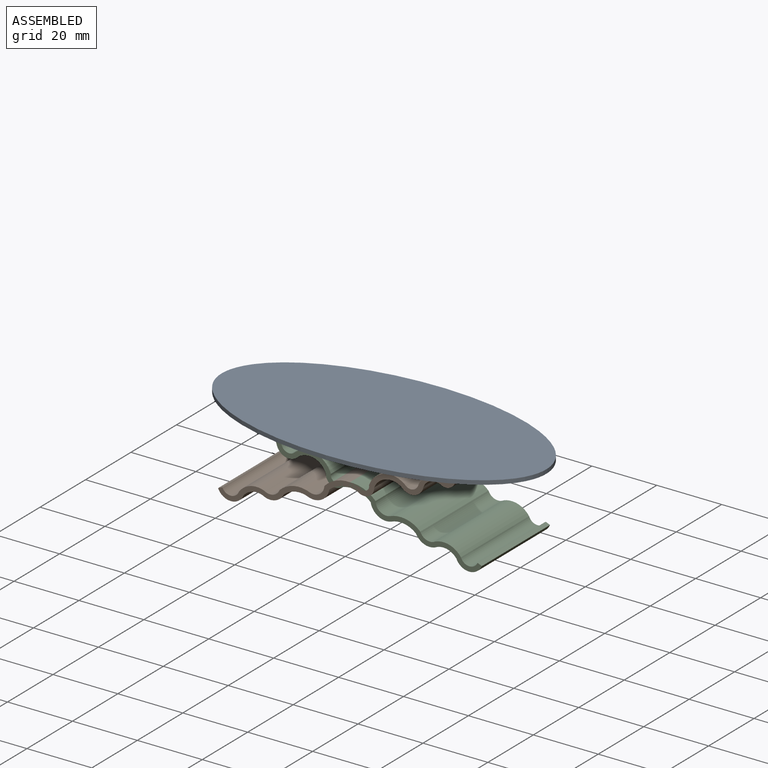
[diagram: assembled view]
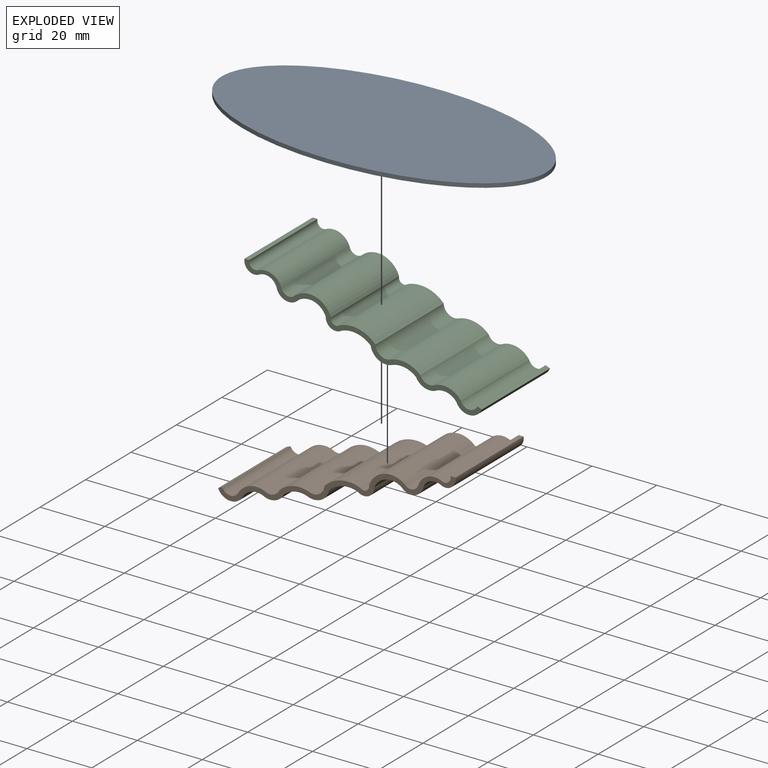
[diagram: exploded view]
GUIDED TOUR — MATED ASSEMBLY (Onshape document 716f037b078b8982c34bb08b, AutoMate assembly 716f037b078b8982c34bb08b_2b918a328e987fc85e9c8364_022e2a9d8e3ef389ea4cbe89_default)

This assembly has 3 components, labeled P0..P2 below (a component is one placed occurrence of a part; the same part can appear more than once), held together by 2 mates. A mate is a constraint between two components; its type names the relative motion it leaves free:
  FASTENED — locks the two components together rigidly (no relative motion).
Axis/direction vectors are unit vectors and 'through' points are millimeter coordinates, both in the assembly's world frame.

MATES
  1. FASTENED "plateau + pied droit": P1 <-> P0, direction (0.000, 0.000, 1.000) through (31.75, -15.00, 0.00) mm
  2. FASTENED "plateau + pied gauche": P2 <-> P0, direction (0.000, 0.000, 1.000) through (-31.75, 15.00, 0.00) mm

ASSEMBLY ORDER
  1. P1 — the base component [order heuristic]
  2. P2 — core [order heuristic]
  3. P0 [order verified]
Order-tag legend:
  [order verified] — this step's position reverses a verified removal order: the component was checked to insert without passing through the ones already placed.
  [order heuristic] — the first 2 components form the assembly's core: parts whose collision-free extraction could not be verified, listed in mate-graph order.

Of the 3 components, 2 carry the full construction recipe — the FeatureScript program that regenerates the part's solid from scratch; the rest are supplied as boundary geometry only.
Each toured component is shown spotlighted twice — in the assembled view, then in the exploded view, where a leader line traces a displaced component back to its assembled socket (saturated green if recipe-attached, orange if geometry-only; every other component desaturated gray) — followed by its recipe or geometry summary and the mates that hold it.
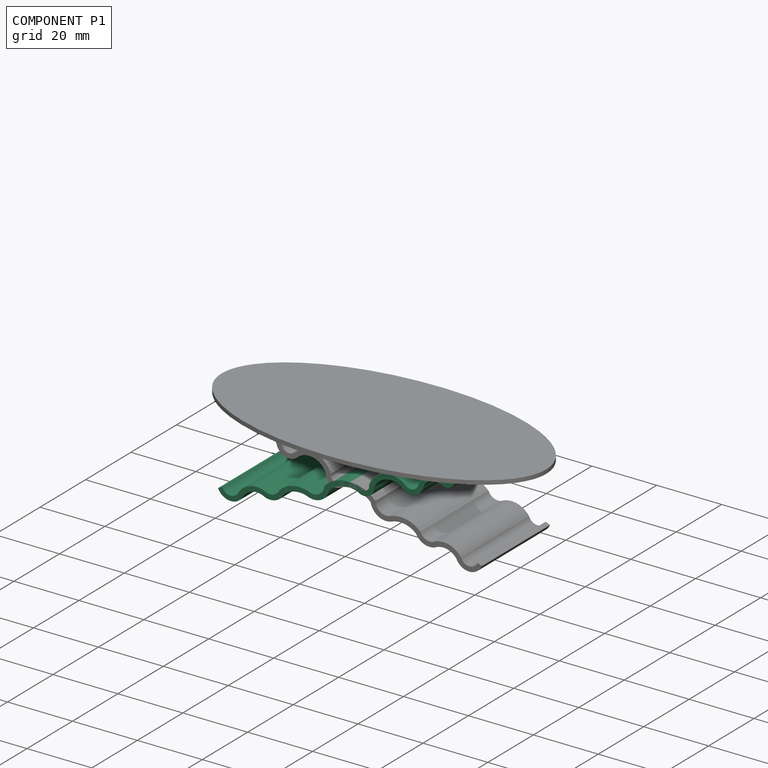
[diagram: component P1 — assembled]
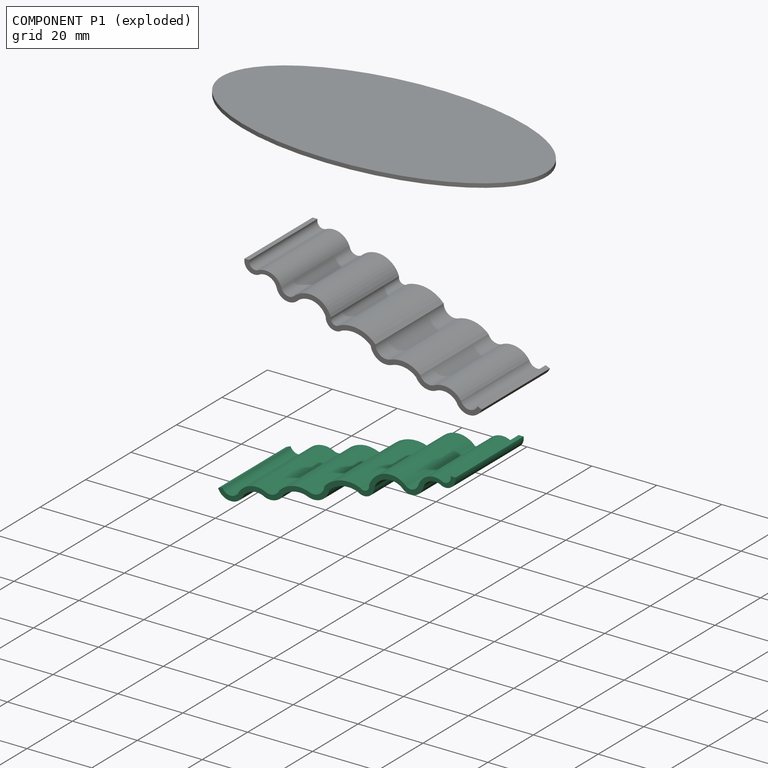
[diagram: component P1 — exploded]
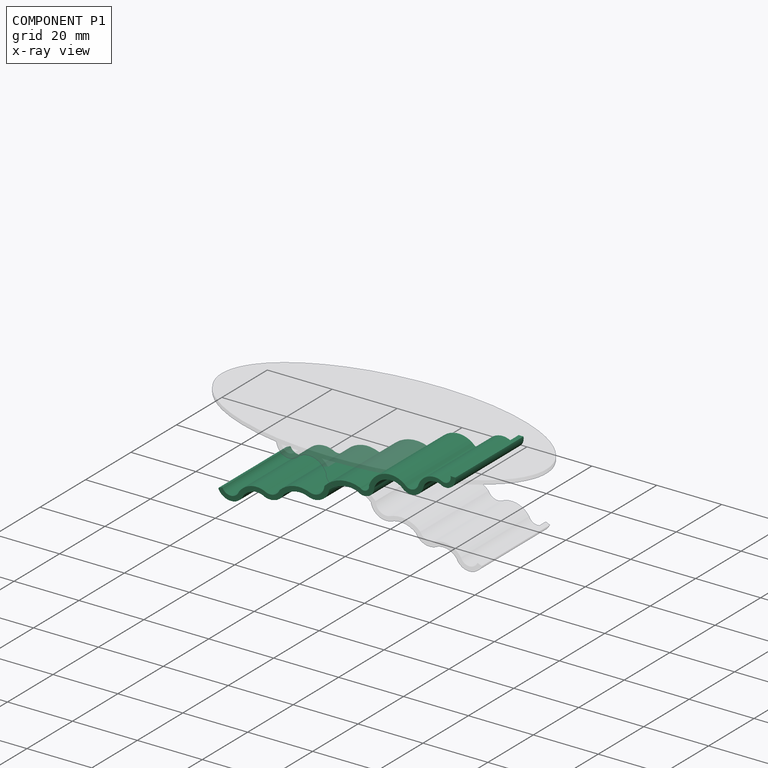
[diagram: component P1 — x-ray view]
COMPONENT P1 — recipe-attached (CADFS 00285021, mesh-verified: the recipe's output STEP matches this component's geometry to below the mesh-comparison resolution (tessellation chordal tolerance ~0.124 mm)).
Held by: FASTENED mate "plateau + pied droit" to P0.
Construction recipe (FeatureScript — the CAD program that rebuilds this solid; sketch coordinates are in the units given by the * unit suffixes, e.g. mm):

FeatureScript 1618;
import(path : "onshape/std/geometry.fs", version : "1618.0");
import(path : "onshape/std/common.fs", version : "1618.0");
const mm = millimeter;
const VERTEX = EntityType.VERTEX;
const EDGE = EntityType.EDGE;
const FACE = EntityType.FACE;
const BODY = EntityType.BODY;
function v(x, y){return vector(x, y);}
function OD(order){return orderDisambiguation(order);}
function OSD(set){return originalSetDisambiguation(set);}
function TD(topology){return topologyDisambiguation(topology);}
function TDD(query){return trueDependencyDisambiguation(query);}
function sQuery(a, b, c) {return sketchEntityQuery(a, b, c);}

annotation { "Feature Type Name" : "Feature", "Feature Type Description" : "" }
export const myFeature = defineFeature(function(context is Context, id is Id, definition is map)
    precondition{}
    {
        {
            var Q0;
            Q0=qCreatedBy(makeId("Front.planeOp"),FACE);
            var sketch = newSketch(context, id + "F0", { "sketchPlane" : qUnion([Q0])});
            skLineSegment(sketch, "E0", {"start": v(-1477.5, -539.8) * mm, "end": v(522.5, -539.8) * mm, "construction": true});
            skLineSegment(sketch, "E1", {"start": v(522.5, -539.8) * mm, "end": v(522.5, -39.8) * mm, "construction": true});
            skLineSegment(sketch, "E2", {"start": v(-1477.5, -539.8) * mm, "end": v(-1477.5, -39.8) * mm, "construction": true});
            skLineSegment(sketch, "E3", {"start": v(-1477.5, -39.8) * mm, "end": v(522.5, -39.8) * mm, "construction": true});
            skArc(sketch, "E4", {"start": v(166.26, -101.87) * mm, "mid": v(100.7, -104.05) * mm, "end": v(61.7, -156.78) * mm});
            skArc(sketch, "E5", {"start": v(-57.3, -193.61) * mm, "mid": v(11.4, -204.95) * mm, "end": v(61.7, -156.78) * mm});
            skArc(sketch, "E6", {"start": v(-57.3, -193.61) * mm, "mid": v(-157.33, -162.3) * mm, "end": v(-238.53, -228.57) * mm});
            skArc(sketch, "E7", {"start": v(-339.2, -279.5) * mm, "mid": v(-272.53, -286.32) * mm, "end": v(-238.53, -228.57) * mm});
            skArc(sketch, "E8", {"start": v(-339.2, -279.5) * mm, "mid": v(-432.48, -272.58) * mm, "end": v(-515.4, -315.87) * mm});
            skArc(sketch, "E9", {"start": v(-641.26, -391.38) * mm, "mid": v(-561.03, -382.45) * mm, "end": v(-515.4, -315.87) * mm});
            skArc(sketch, "E10", {"start": v(-641.26, -391.38) * mm, "mid": v(-721.87, -381.38) * mm, "end": v(-795.08, -416.55) * mm});
            skArc(sketch, "E11", {"start": v(-926.54, -455.7) * mm, "mid": v(-852.28, -464.76) * mm, "end": v(-795.08, -416.55) * mm});
            skArc(sketch, "E12", {"start": v(-926.54, -455.7) * mm, "mid": v(-990.83, -453.05) * mm, "end": v(-1044, -489.27) * mm});
            skArc(sketch, "E13", {"start": v(-1200.63, -489.27) * mm, "mid": v(-1122.32, -541.02) * mm, "end": v(-1044, -489.27) * mm});
            skArc(sketch, "E14", {"start": v(166.26, -101.87) * mm, "mid": v(234.57, -102.35) * mm, "end": v(262.03, -39.8) * mm});
            skArc(sketch, "E15.1", {"start": v(-632.22, -363.25) * mm, "mid": v(-732.19, -352.47) * mm, "end": v(-821.44, -398.75) * mm});
            skArc(sketch, "E15.2", {"start": v(-914.64, -428.73) * mm, "mid": v(-861, -435.6) * mm, "end": v(-821.44, -398.75) * mm});
            skArc(sketch, "E15.3", {"start": v(-914.64, -428.73) * mm, "mid": v(-1001.24, -424.4) * mm, "end": v(-1071.94, -474.6) * mm});
            skArc(sketch, "E15.4", {"start": v(-1174.28, -478.04) * mm, "mid": v(-1121.94, -510.98) * mm, "end": v(-1071.94, -474.6) * mm});
            skArc(sketch, "E15.5", {"start": v(-632.22, -363.25) * mm, "mid": v(-573.82, -354.03) * mm, "end": v(-545.52, -302.12) * mm});
            skArc(sketch, "E15.6", {"start": v(-324.88, -253.44) * mm, "mid": v(-442.7, -243.77) * mm, "end": v(-545.52, -302.12) * mm});
            skArc(sketch, "E15.7", {"start": v(-324.88, -253.44) * mm, "mid": v(-287, -259.26) * mm, "end": v(-270.6, -224.63) * mm});
            skArc(sketch, "E15.8", {"start": v(-39.45, -170.52) * mm, "mid": v(-169.9, -134) * mm, "end": v(-270.6, -224.63) * mm});
            skArc(sketch, "E15.9", {"start": v(-39.45, -170.52) * mm, "mid": v(1.62, -176.1) * mm, "end": v(31.65, -147.54) * mm});
            skArc(sketch, "E15.10", {"start": v(181.99, -83.46) * mm, "mid": v(91.6, -79.76) * mm, "end": v(31.65, -147.54) * mm});
            skLineSegment(sketch, "E16", {"start": v(-1174.28, -478.04) * mm, "end": v(-1200.63, -489.27) * mm});
            skArc(sketch, "E17", {"start": v(181.99, -83.46) * mm, "mid": v(220.33, -76.9) * mm, "end": v(232.03, -39.8) * mm});
            skLineSegment(sketch, "E18", {"start": v(232.03, -39.8) * mm, "end": v(262.03, -39.8) * mm});
            skSolve(sketch);
        }
        {
            var Q0;
            Q0=makeQuery(id+"F0.imprint","IMPRINT",FACE,{"disambiguationData":[TD([[makeQuery(id+"F0.imprint","IMPRINT",EDGE,{"derivedFrom":sQuery(id+"F0.wireOp",EDGE,"E4")}),-1.0]])]});
            extrude(context, id + "F1", {"entities" : qUnion([Q0]), "depth" : 600 * mm});
        }
        {
            var Q0;
            Q0=makeQuery(id+"F1.opExtrude","SWEPT_BODY",BODY,{"disambiguationData":[OSD([sQuery(id+"F0.wireOp",EDGE,"E4"),sQuery(id+"F0.wireOp",EDGE,"E5"),sQuery(id+"F0.wireOp",EDGE,"E6"),sQuery(id+"F0.wireOp",EDGE,"E7"),sQuery(id+"F0.wireOp",EDGE,"E8"),sQuery(id+"F0.wireOp",EDGE,"E9"),sQuery(id+"F0.wireOp",EDGE,"E10"),sQuery(id+"F0.wireOp",EDGE,"E11"),sQuery(id+"F0.wireOp",EDGE,"E12"),sQuery(id+"F0.wireOp",EDGE,"E13"),sQuery(id+"F0.wireOp",EDGE,"E14"),sQuery(id+"F0.wireOp",EDGE,"E15.1"),sQuery(id+"F0.wireOp",EDGE,"E15.2"),sQuery(id+"F0.wireOp",EDGE,"E15.3"),sQuery(id+"F0.wireOp",EDGE,"E15.4"),sQuery(id+"F0.wireOp",EDGE,"E15.5"),sQuery(id+"F0.wireOp",EDGE,"E15.6"),sQuery(id+"F0.wireOp",EDGE,"E15.7"),sQuery(id+"F0.wireOp",EDGE,"E15.8"),sQuery(id+"F0.wireOp",EDGE,"E15.9"),sQuery(id+"F0.wireOp",EDGE,"E15.10"),sQuery(id+"F0.wireOp",EDGE,"E16"),sQuery(id+"F0.wireOp",EDGE,"E17"),sQuery(id+"F0.wireOp",EDGE,"E18")])]});
            var Q1;
            Q1=makeQuery(id+"F1.opExtrude","CAP_VERTEX",VERTEX,{"disambiguationData":[OSD([sQuery(id+"F0.wireOp",EDGE,"E14"),sQuery(id+"F0.wireOp",EDGE,"E18")])],"isStart":false});
            transform(context, id + "F2", {"entities" : qUnion([Q0]), "transformType" : TransformType.SCALE_UNIFORMLY, "scale" : 0.05, "scalePoint" : qUnion([Q1]), "makeCopy" : false});
        }
    });
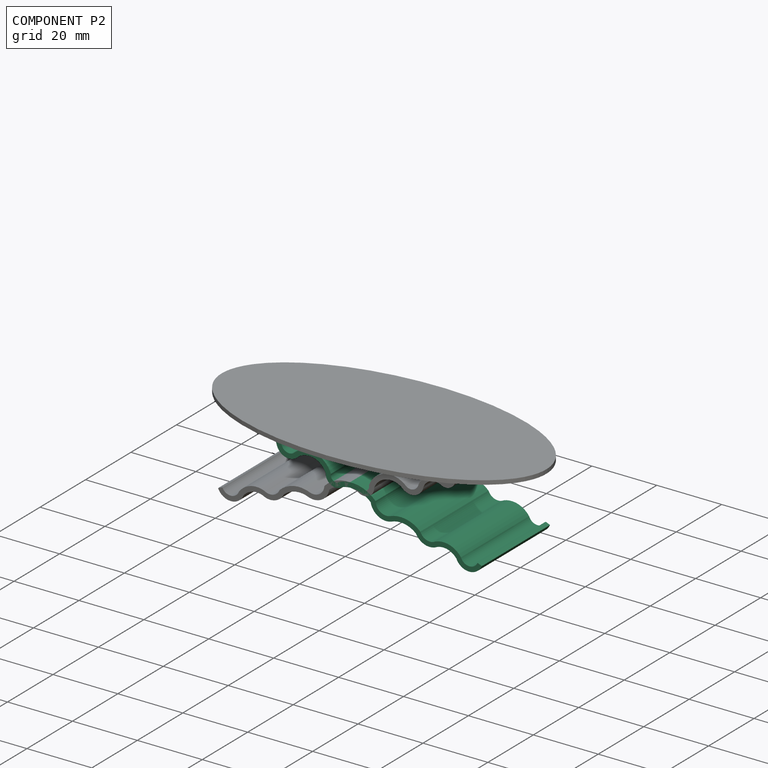
[diagram: component P2 — assembled]
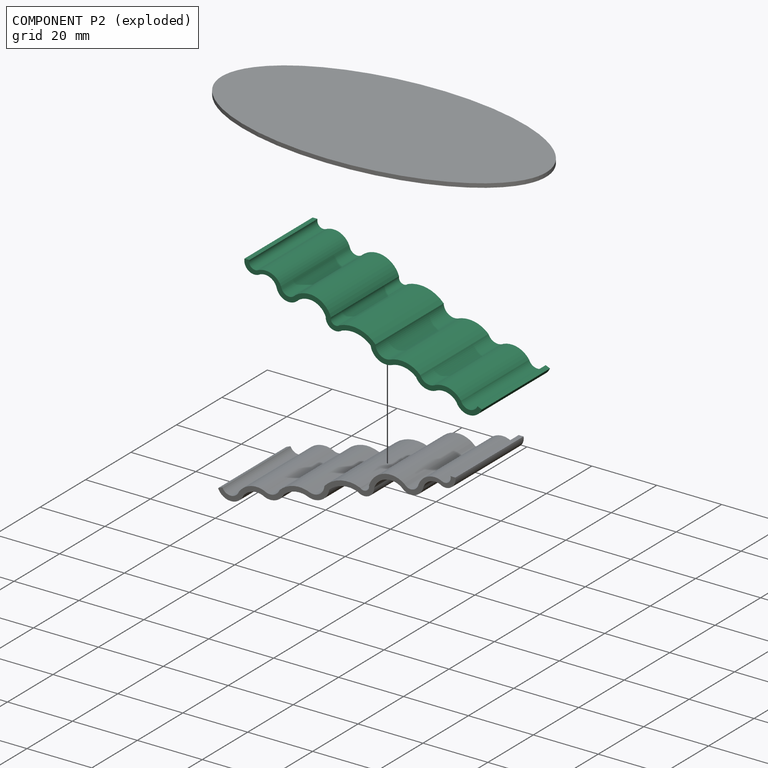
[diagram: component P2 — exploded]
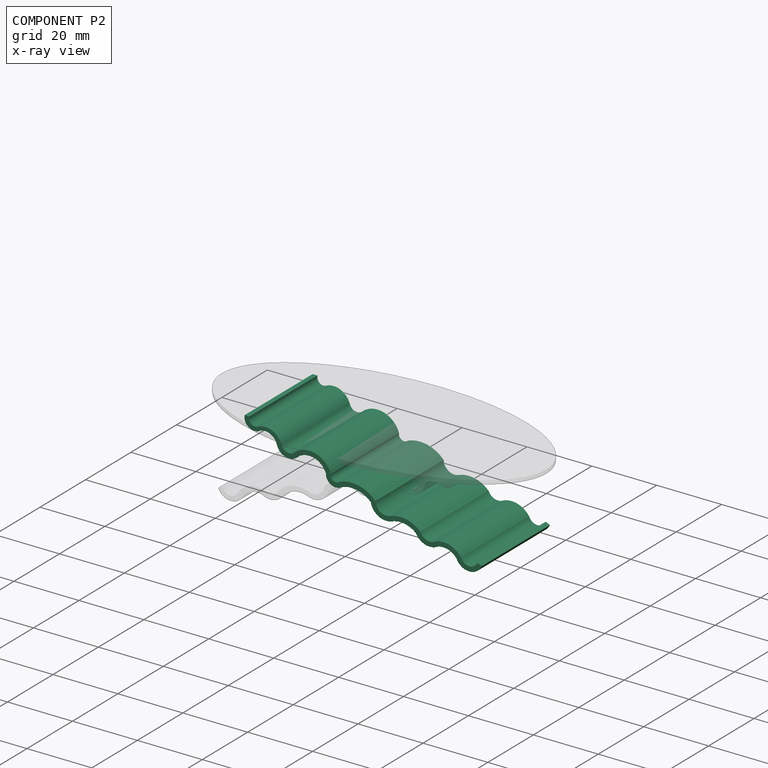
[diagram: component P2 — x-ray view]
COMPONENT P2 — same part as P1 (CADFS 00285021); its construction recipe is shown at P1.
Held by: FASTENED mate "plateau + pied gauche" to P0.
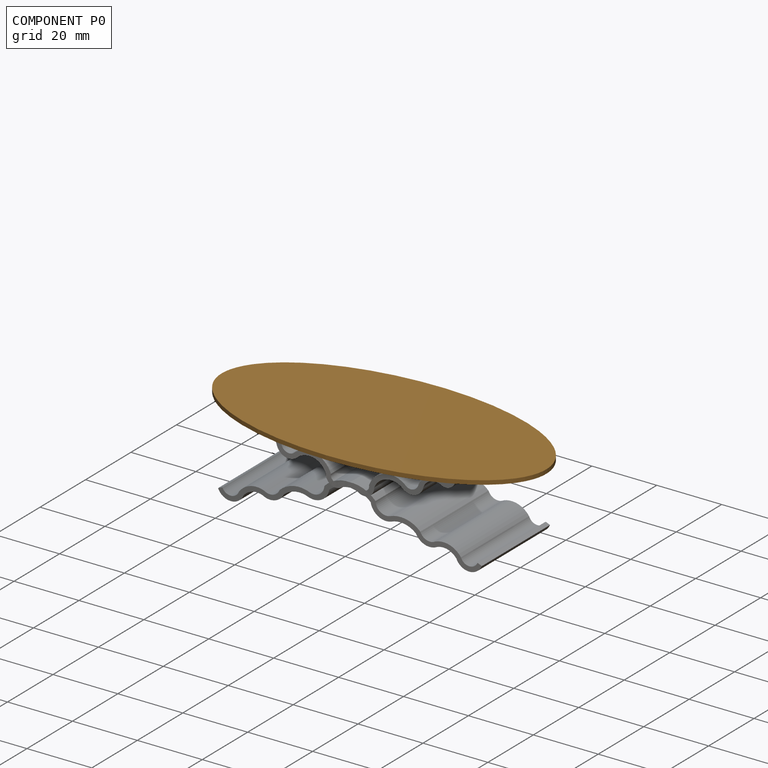
[diagram: component P0 — assembled]
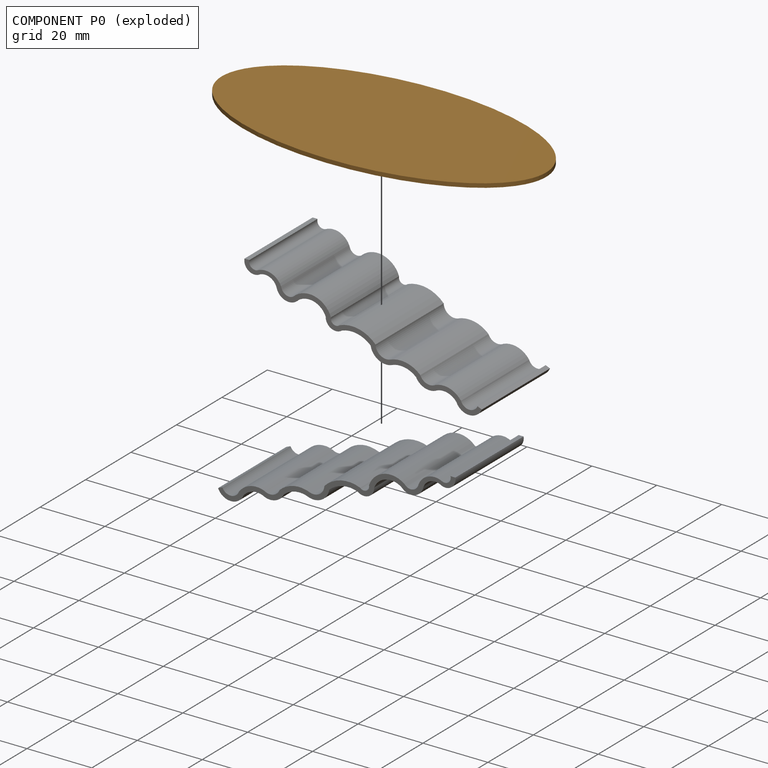
[diagram: component P0 — exploded]
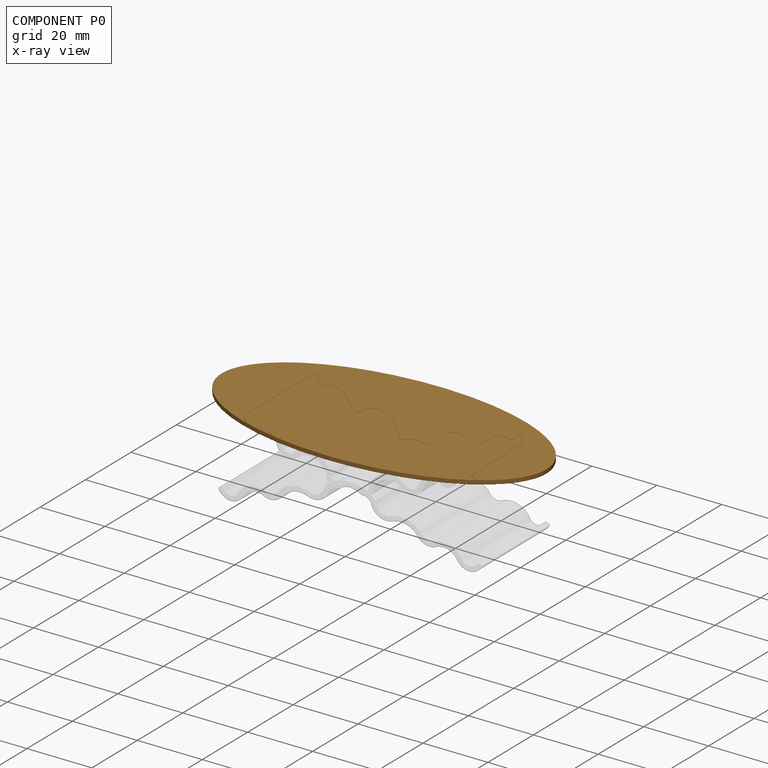
[diagram: component P0 — x-ray view]
COMPONENT P0 — geometry summary (no construction recipe available for this part):
  bounding box: 100.0 x 50.0 x 1.3 mm
  B-rep topology: 1 solid, 23 faces, 102 edges
  volume: 4909 mm^3 (76% of its bounding box)
  symmetry: 2-fold rotationally symmetric about the x axis; 2-fold rotationally symmetric about the y axis; 2-fold rotationally symmetric about the z axis; mirror-symmetric across its x mid-plane, y mid-plane, z mid-plane
Held by: FASTENED mate "plateau + pied droit" to P1; FASTENED mate "plateau + pied gauche" to P2.
PROVENANCE & LICENSES
Assembly (occurrences, transforms, mates, per-part STEP geometry): AutoMate dataset, Zenodo record 7776208, CC0.
Construction recipes: CADFS (HuggingFace VladPyatov/CADFS, CC-BY-4.0, layered over the ABC dataset), FeatureScript reconstruction programs keyed by ABC model id.
Join: ABC meta listings map ABC model id -> Onshape documentId; within a shared document, parts are matched by geometric signature (bounding-box dims + volume at 0.1% relative tolerance, exact B-rep face/solid counts).
Verification: 2 of this assembly's 3 components carry a recipe attachment, and every attachment is mesh-verified: the CADFS STEP and the AutoMate member STEP were compared as meshes in their shared local frame (symmetric sampled-point-to-mesh distance); worst across the 2 attachments: below the mesh-comparison resolution (tessellation chordal tolerance ~0.124 mm) on a 83 mm part.
Renders: orthographic iso camera (az 35 / el 25); the floor grid conveys scale (grid pitch printed in each image; no ruler). In the exploded view each component is displaced by its stored offset vector: the offsets alone carry the explosion direction (mate normal/axis signs are not orientation cues and do not encode it), and separation distances are assigned per mate-chain, not proportionally to assembly-order depth.
